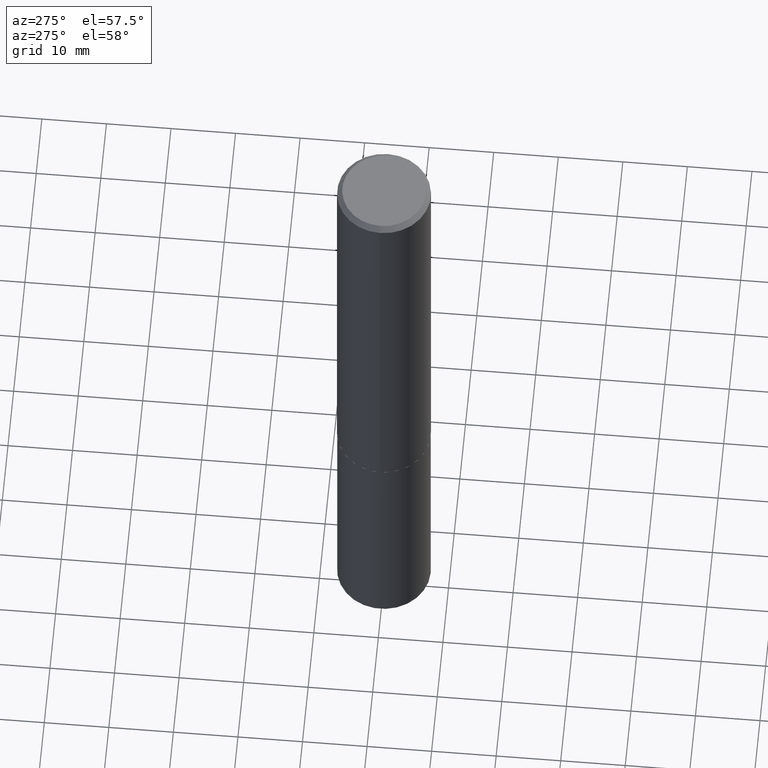
[diagram: clean part render]
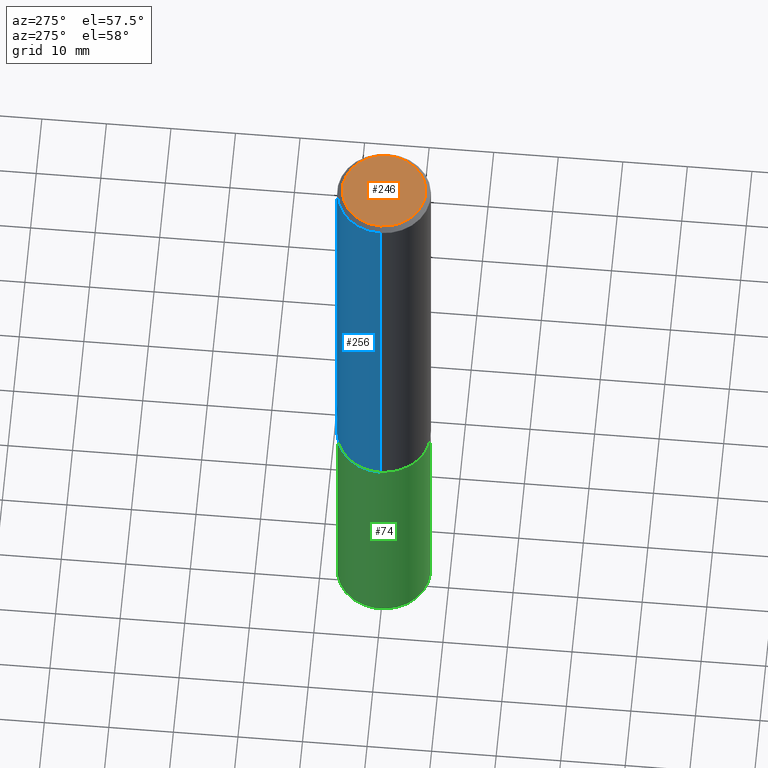
[diagram: same view with three faces highlighted in distinct colors, each labeled with its STEP entity id]
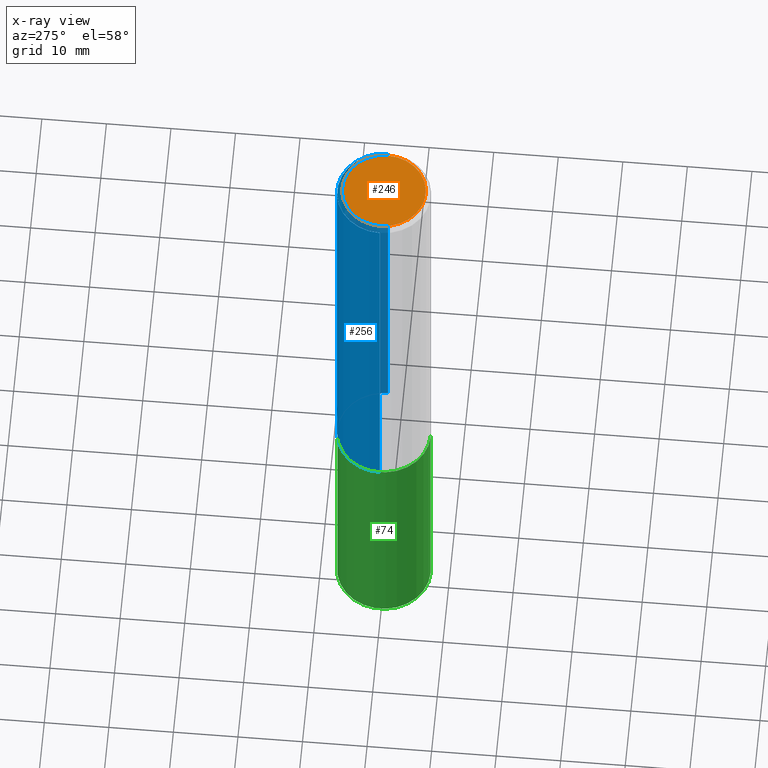
[diagram: x-ray of the same camera — body ghosted, the three highlighted faces saturated]
A machine part, auxiliary view with three faces highlighted in distinct colors.
The next image is the same camera in x-ray (body ghosted, the three faces saturated) — at least one of them is partly hidden behind the body in this view.
Their STEP definitions:

[orange] entity #246 — the highlighted planar face has unit normal (0, -0, -1).
#33 = EDGE_CURVE ( 'NONE', #217, #259, #107, .T. ) ;
#37 = DIRECTION ( 'NONE',  ( 1.000000000000000000, -6.982962677686266711E-15, 4.876211886893936302E-29 ) ) ;
#81 = AXIS2_PLACEMENT_3D ( 'NONE', #190, #311, #37 ) ;
#87 = CIRCLE ( 'NONE', #81, 0.2541999999999999815 ) ;
#92 = EDGE_CURVE ( 'NONE', #259, #217, #87, .T. ) ;
#107 = CIRCLE ( 'NONE', #347, 0.2541999999999999815 ) ;
#127 = DIRECTION ( 'NONE',  ( -2.445468806185136597E-29, 3.491481338843145583E-15, 1.000000000000000000 ) ) ;
#128 = PLANE ( 'NONE',  #196 ) ;
#153 = EDGE_LOOP ( 'NONE', ( #188, #174 ) ) ;
#166 = CARTESIAN_POINT ( 'NONE',  ( -2.066436526677436908E-47, 2.950323697668913920E-33, 8.450062914116742878E-19 ) ) ;
#169 = FACE_OUTER_BOUND ( 'NONE', #153, .T. ) ;
#174 = ORIENTED_EDGE ( 'NONE', *, *, #33, .T. ) ;
#188 = ORIENTED_EDGE ( 'NONE', *, *, #92, .T. ) ;
#190 = CARTESIAN_POINT ( 'NONE',  ( -4.132873053354873817E-47, 5.900647395337827841E-33, 1.690012582823348576E-18 ) ) ;
#196 = AXIS2_PLACEMENT_3D ( 'NONE', #166, #354, #248 ) ;
#217 = VERTEX_POINT ( 'NONE', #322 ) ;
#246 = ADVANCED_FACE ( 'NONE', ( #169 ), #128, .F. ) ;
#247 = DIRECTION ( 'NONE',  ( 1.000000000000000000, -6.982962677686266711E-15, 4.876211886893936302E-29 ) ) ;
#248 = DIRECTION ( 'NONE',  ( -1.000000000000000000, 6.982962677686265922E-15, -4.876176775795935793E-29 ) ) ;
#259 = VERTEX_POINT ( 'NONE', #357 ) ;
#311 = DIRECTION ( 'NONE',  ( -2.445468806185136597E-29, 3.491481338843145583E-15, 1.000000000000000000 ) ) ;
#322 = CARTESIAN_POINT ( 'NONE',  ( 0.2541999999999999815, -1.905688268168128037E-15, 1.690012582836218602E-18 ) ) ;
#341 = CARTESIAN_POINT ( 'NONE',  ( -4.132873053354873817E-47, 5.900647395337827841E-33, 1.690012582823348576E-18 ) ) ;
#347 = AXIS2_PLACEMENT_3D ( 'NONE', #341, #127, #247 ) ;
#354 = DIRECTION ( 'NONE',  ( 2.438088387897960049E-29, -3.491481338843145188E-15, -1.000000000000000000 ) ) ;
#357 = CARTESIAN_POINT ( 'NONE',  ( -0.2541999999999999815, 1.829623508587272093E-15, 1.690012582810744134E-18 ) ) ;

[blue] entity #256 — the highlighted cylindrical surface (partial cylindrical patch) has radius 7.2504 mm, axis along (-0, 0, 1).
#2 = DIRECTION ( 'NONE',  ( -2.445468806185136877E-29, 3.491481338843145188E-15, 1.000000000000000000 ) ) ;
#11 = CIRCLE ( 'NONE', #330, 0.2854500000000003146 ) ;
#21 = EDGE_LOOP ( 'NONE', ( #182, #150, #38, #98 ) ) ;
#24 = VERTEX_POINT ( 'NONE', #120 ) ;
#38 = ORIENTED_EDGE ( 'NONE', *, *, #223, .F. ) ;
#40 = DIRECTION ( 'NONE',  ( -2.445468806185136877E-29, 3.491481338843145188E-15, 1.000000000000000000 ) ) ;
#45 = DIRECTION ( 'NONE',  ( -2.445468806185136597E-29, 3.491481338843145583E-15, 1.000000000000000000 ) ) ;
#56 = CYLINDRICAL_SURFACE ( 'NONE', #232, 0.2854500000000001481 ) ;
#59 = CARTESIAN_POINT ( 'NONE',  ( -0.2854500000000001481, 2.028244239227207033E-15, -1.404110021513263625E-29 ) ) ;
#60 = VECTOR ( 'NONE', #40, 39.37007874015748143 ) ;
#70 = AXIS2_PLACEMENT_3D ( 'NONE', #381, #45, #75 ) ;
#75 = DIRECTION ( 'NONE',  ( 1.000000000000000000, -6.982962677686265922E-15, 0.000000000000000000 ) ) ;
#98 = ORIENTED_EDGE ( 'NONE', *, *, #132, .F. ) ;
#104 = EDGE_CURVE ( 'NONE', #300, #24, #219, .T. ) ;
#106 = CARTESIAN_POINT ( 'NONE',  ( 0.2854499999999999815, -2.102395488184393662E-15, -0.03125000000000020817 ) ) ;
#108 = CIRCLE ( 'NONE', #70, 0.2854499999999999815 ) ;
#114 = FACE_OUTER_BOUND ( 'NONE', #21, .T. ) ;
#120 = CARTESIAN_POINT ( 'NONE',  ( -0.2854499999999999815, -2.802307480095755519E-15, -0.03125000000000020817 ) ) ;
#122 = VERTEX_POINT ( 'NONE', #106 ) ;
#131 = CARTESIAN_POINT ( 'NONE',  ( 0.2854500000000003146, -1.154528134315262530E-14, -2.735799999999999788 ) ) ;
#132 = EDGE_CURVE ( 'NONE', #159, #122, #194, .T. ) ;
#140 = CARTESIAN_POINT ( 'NONE',  ( 6.690313559961295236E-29, -9.551994646807077580E-15, -2.735799999999999788 ) ) ;
#141 = DIRECTION ( 'NONE',  ( 1.000000000000000000, -6.982962677686265922E-15, 4.876176775795936353E-29 ) ) ;
#150 = ORIENTED_EDGE ( 'NONE', *, *, #104, .T. ) ;
#159 = VERTEX_POINT ( 'NONE', #131 ) ;
#173 = CARTESIAN_POINT ( 'NONE',  ( 0.000000000000000000, 0.000000000000000000, 0.000000000000000000 ) ) ;
#182 = ORIENTED_EDGE ( 'NONE', *, *, #289, .T. ) ;
#194 = LINE ( 'NONE', #315, #60 ) ;
#219 = LINE ( 'NONE', #59, #312 ) ;
#223 = EDGE_CURVE ( 'NONE', #122, #24, #108, .T. ) ;
#232 = AXIS2_PLACEMENT_3D ( 'NONE', #173, #389, #141 ) ;
#256 = ADVANCED_FACE ( 'NONE', ( #114 ), #56, .T. ) ;
#289 = EDGE_CURVE ( 'NONE', #159, #300, #11, .T. ) ;
#300 = VERTEX_POINT ( 'NONE', #366 ) ;
#312 = VECTOR ( 'NONE', #2, 39.37007874015748143 ) ;
#315 = CARTESIAN_POINT ( 'NONE',  ( 0.2854500000000001481, -1.993286696345545744E-15, 1.391904660650950803E-29 ) ) ;
#330 = AXIS2_PLACEMENT_3D ( 'NONE', #140, #360, #385 ) ;
#360 = DIRECTION ( 'NONE',  ( -2.445468806185136597E-29, 3.491481338843145583E-15, 1.000000000000000000 ) ) ;
#366 = CARTESIAN_POINT ( 'NONE',  ( -0.2854500000000003146, -7.523750407579868575E-15, -2.735799999999999788 ) ) ;
#381 = CARTESIAN_POINT ( 'NONE',  ( 7.642090019328602662E-31, -1.091087918388490267E-16, -0.03125000000000020817 ) ) ;
#385 = DIRECTION ( 'NONE',  ( 1.000000000000000000, -6.982962677686267499E-15, 0.000000000000000000 ) ) ;
#389 = DIRECTION ( 'NONE',  ( -2.445468806185136597E-29, 3.491481338843145583E-15, 1.000000000000000000 ) ) ;

[green] entity #74 — the highlighted cylindrical surface (partial cylindrical patch) has radius 7.2504 mm, axis along (-0, 0, 1).
#32 = ORIENTED_EDGE ( 'NONE', *, *, #278, .T. ) ;
#36 = AXIS2_PLACEMENT_3D ( 'NONE', #371, #275, #343 ) ;
#61 = EDGE_CURVE ( 'NONE', #180, #328, #210, .T. ) ;
#66 = EDGE_LOOP ( 'NONE', ( #93, #206, #32, #147 ) ) ;
#74 = ADVANCED_FACE ( 'NONE', ( #314 ), #100, .T. ) ;
#93 = ORIENTED_EDGE ( 'NONE', *, *, #61, .F. ) ;
#97 = VERTEX_POINT ( 'NONE', #336 ) ;
#100 = CYLINDRICAL_SURFACE ( 'NONE', #36, 0.2854499999999999815 ) ;
#101 = AXIS2_PLACEMENT_3D ( 'NONE', #146, #201, #171 ) ;
#119 = EDGE_CURVE ( 'NONE', #328, #97, #282, .T. ) ;
#130 = VECTOR ( 'NONE', #208, 39.37007874015748143 ) ;
#146 = CARTESIAN_POINT ( 'NONE',  ( 1.046713341713137297E-28, -1.494347063265972236E-14, -4.280097960714495109 ) ) ;
#147 = ORIENTED_EDGE ( 'NONE', *, *, #119, .F. ) ;
#170 = CIRCLE ( 'NONE', #101, 0.2854499999999999815 ) ;
#171 = DIRECTION ( 'NONE',  ( -6.982962677686265922E-15, -1.000000000000000000, 3.828128209723963046E-15 ) ) ;
#180 = VERTEX_POINT ( 'NONE', #224 ) ;
#197 = CARTESIAN_POINT ( 'NONE',  ( 6.691536294364390280E-29, -9.553740387476499873E-15, -2.736299999999999955 ) ) ;
#201 = DIRECTION ( 'NONE',  ( -2.445654948928403748E-29, 3.491214771840200006E-15, 1.000000000000000000 ) ) ;
#203 = LINE ( 'NONE', #234, #130 ) ;
#206 = ORIENTED_EDGE ( 'NONE', *, *, #355, .T. ) ;
#208 = DIRECTION ( 'NONE',  ( -2.445654948928403468E-29, 3.491214771840200006E-15, 1.000000000000000000 ) ) ;
#210 = LINE ( 'NONE', #374, #329 ) ;
#224 = CARTESIAN_POINT ( 'NONE',  ( 2.028244239227311162E-15, 0.2854499999999851600, -4.280097960714495997 ) ) ;
#227 = DIRECTION ( 'NONE',  ( -2.445654948928403748E-29, 3.491214771840200006E-15, 1.000000000000000000 ) ) ;
#229 = CARTESIAN_POINT ( 'NONE',  ( 2.028244239227311162E-15, 0.2854499999999904891, -2.736300000000001287 ) ) ;
#234 = CARTESIAN_POINT ( 'NONE',  ( -1.993286696345477508E-15, -0.2854500000000095294, -2.736299999999999066 ) ) ;
#242 = DIRECTION ( 'NONE',  ( -2.445654948928403468E-29, 3.491214771840200006E-15, 1.000000000000000000 ) ) ;
#251 = DIRECTION ( 'NONE',  ( -6.982962677686265922E-15, -1.000000000000000000, 3.828128209723963046E-15 ) ) ;
#262 = VERTEX_POINT ( 'NONE', #332 ) ;
#275 = DIRECTION ( 'NONE',  ( -2.445654948928403748E-29, 3.491214771840200006E-15, 1.000000000000000000 ) ) ;
#278 = EDGE_CURVE ( 'NONE', #262, #97, #203, .T. ) ;
#282 = CIRCLE ( 'NONE', #288, 0.2854499999999999815 ) ;
#288 = AXIS2_PLACEMENT_3D ( 'NONE', #197, #227, #251 ) ;
#314 = FACE_OUTER_BOUND ( 'NONE', #66, .T. ) ;
#328 = VERTEX_POINT ( 'NONE', #229 ) ;
#329 = VECTOR ( 'NONE', #242, 39.37007874015748143 ) ;
#332 = CARTESIAN_POINT ( 'NONE',  ( -1.993286696345440432E-15, -0.2854500000000150250, -4.280097960714494221 ) ) ;
#336 = CARTESIAN_POINT ( 'NONE',  ( -1.993286696345477508E-15, -0.2854500000000095294, -2.736299999999999066 ) ) ;
#343 = DIRECTION ( 'NONE',  ( -6.982962677686265922E-15, -1.000000000000000000, 3.828128209723963046E-15 ) ) ;
#355 = EDGE_CURVE ( 'NONE', #180, #262, #170, .T. ) ;
#371 = CARTESIAN_POINT ( 'NONE',  ( 6.691536294364390280E-29, -9.553740387476499873E-15, -2.736299999999999955 ) ) ;
#374 = CARTESIAN_POINT ( 'NONE',  ( 2.028244239227272508E-15, 0.2854499999999904336, -2.736300000000001287 ) ) ;